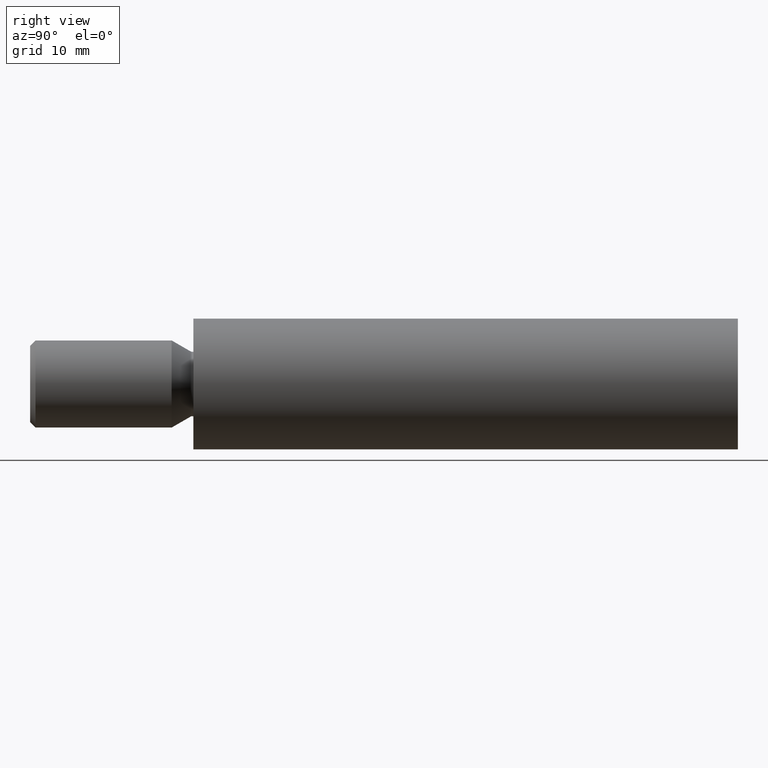
[diagram: clean part render]
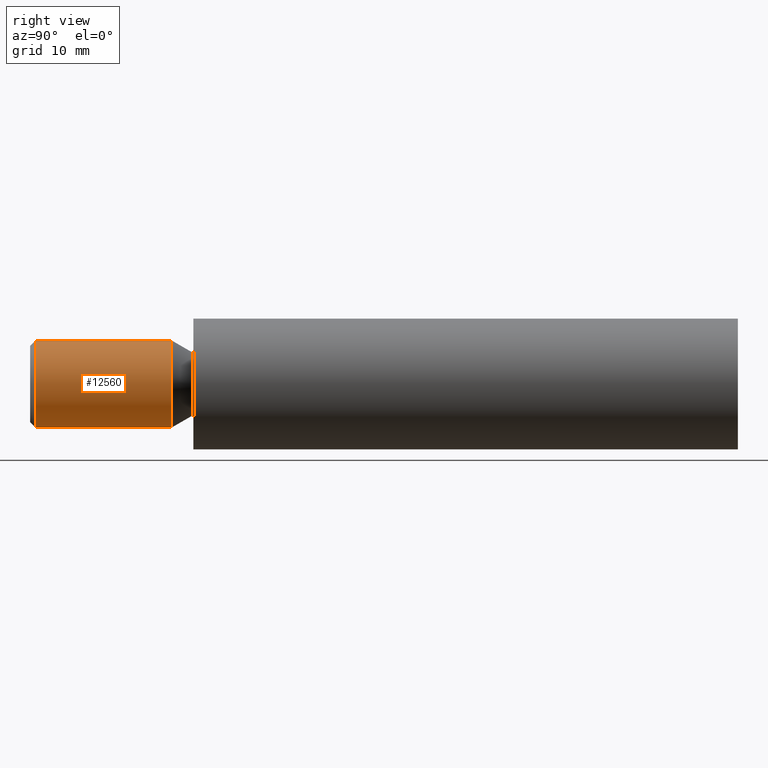
[diagram: same view with one face highlighted and labeled with its STEP entity id]
A machine part, right view. The second image highlights one B-rep face of the part: STEP entity #12560.
In plain terms, the highlighted cylindrical surface (partial cylindrical patch) has radius 4 mm, axis along (-0, -1, -0).
Its self-contained STEP definition (entity closure, byte-faithful):
#624 = DIRECTION ( 'NONE',  ( -0.0000000000000000000, -1.000000000000000000, -0.0000000000000000000 ) ) ;
#1167 = VECTOR ( 'NONE', #7497, 1000.000000000000000 ) ;
#1570 = CARTESIAN_POINT ( 'NONE',  ( 0.0000000000000000000, -14.50000000000000900, -4.000000000000000900 ) ) ;
#1769 = ORIENTED_EDGE ( 'NONE', *, *, #11681, .T. ) ;
#1801 = LINE ( 'NONE', #3080, #9170 ) ;
#1855 = VERTEX_POINT ( 'NONE', #13666 ) ;
#2030 = DIRECTION ( 'NONE',  ( -0.0000000000000000000, -1.000000000000000000, -0.0000000000000000000 ) ) ;
#2827 = CARTESIAN_POINT ( 'NONE',  ( 0.0000000000000000000, -14.50000000000000900, 0.0000000000000000000 ) ) ;
#3080 = CARTESIAN_POINT ( 'NONE',  ( 4.898587196589413800E-016, -15.00000000000000000, 4.000000000000000900 ) ) ;
#3134 = EDGE_CURVE ( 'NONE', #8037, #9448, #6928, .T. ) ;
#3145 = CARTESIAN_POINT ( 'NONE',  ( 0.0000000000000000000, -2.000000000000000000, 0.0000000000000000000 ) ) ;
#3160 = EDGE_CURVE ( 'NONE', #1855, #9448, #6175, .T. ) ;
#3690 = CYLINDRICAL_SURFACE ( 'NONE', #10262, 4.000000000000000900 ) ;
#3875 = DIRECTION ( 'NONE',  ( 0.0000000000000000000, 1.000000000000000000, 0.0000000000000000000 ) ) ;
#4513 = AXIS2_PLACEMENT_3D ( 'NONE', #2827, #3875, #10854 ) ;
#4722 = CIRCLE ( 'NONE', #10835, 4.000000000000000000 ) ;
#5533 = ORIENTED_EDGE ( 'NONE', *, *, #10788, .T. ) ;
#6175 = LINE ( 'NONE', #13251, #1167 ) ;
#6580 = DIRECTION ( 'NONE',  ( 0.0000000000000000000, 0.0000000000000000000, -1.000000000000000000 ) ) ;
#6928 = CIRCLE ( 'NONE', #4513, 4.000000000000000900 ) ;
#7238 = EDGE_LOOP ( 'NONE', ( #1769, #5533, #8637, #10762 ) ) ;
#7497 = DIRECTION ( 'NONE',  ( -0.0000000000000000000, -1.000000000000000000, -0.0000000000000000000 ) ) ;
#7662 = DIRECTION ( 'NONE',  ( -0.0000000000000000000, -1.000000000000000000, -0.0000000000000000000 ) ) ;
#8037 = VERTEX_POINT ( 'NONE', #14599 ) ;
#8637 = ORIENTED_EDGE ( 'NONE', *, *, #3134, .T. ) ;
#9170 = VECTOR ( 'NONE', #2030, 1000.000000000000000 ) ;
#9448 = VERTEX_POINT ( 'NONE', #1570 ) ;
#10262 = AXIS2_PLACEMENT_3D ( 'NONE', #14390, #624, #13178 ) ;
#10762 = ORIENTED_EDGE ( 'NONE', *, *, #3160, .F. ) ;
#10788 = EDGE_CURVE ( 'NONE', #14707, #8037, #1801, .T. ) ;
#10835 = AXIS2_PLACEMENT_3D ( 'NONE', #3145, #7662, #6580 ) ;
#10854 = DIRECTION ( 'NONE',  ( 0.0000000000000000000, 0.0000000000000000000, -1.000000000000000000 ) ) ;
#11681 = EDGE_CURVE ( 'NONE', #1855, #14707, #4722, .T. ) ;
#11994 = FACE_OUTER_BOUND ( 'NONE', #7238, .T. ) ;
#12560 = ADVANCED_FACE ( 'NONE', ( #11994 ), #3690, .T. ) ;
#13178 = DIRECTION ( 'NONE',  ( 0.0000000000000000000, 0.0000000000000000000, -1.000000000000000000 ) ) ;
#13251 = CARTESIAN_POINT ( 'NONE',  ( 0.0000000000000000000, -15.00000000000000000, -4.000000000000000900 ) ) ;
#13401 = CARTESIAN_POINT ( 'NONE',  ( 4.898587196589413800E-016, -2.000000000000000000, 4.000000000000000000 ) ) ;
#13666 = CARTESIAN_POINT ( 'NONE',  ( 0.0000000000000000000, -2.000000000000000000, -4.000000000000000000 ) ) ;
#14390 = CARTESIAN_POINT ( 'NONE',  ( 0.0000000000000000000, -15.00000000000000000, 0.0000000000000000000 ) ) ;
#14599 = CARTESIAN_POINT ( 'NONE',  ( 4.898587196589413800E-016, -14.50000000000000900, 4.000000000000000900 ) ) ;
#14707 = VERTEX_POINT ( 'NONE', #13401 ) ;